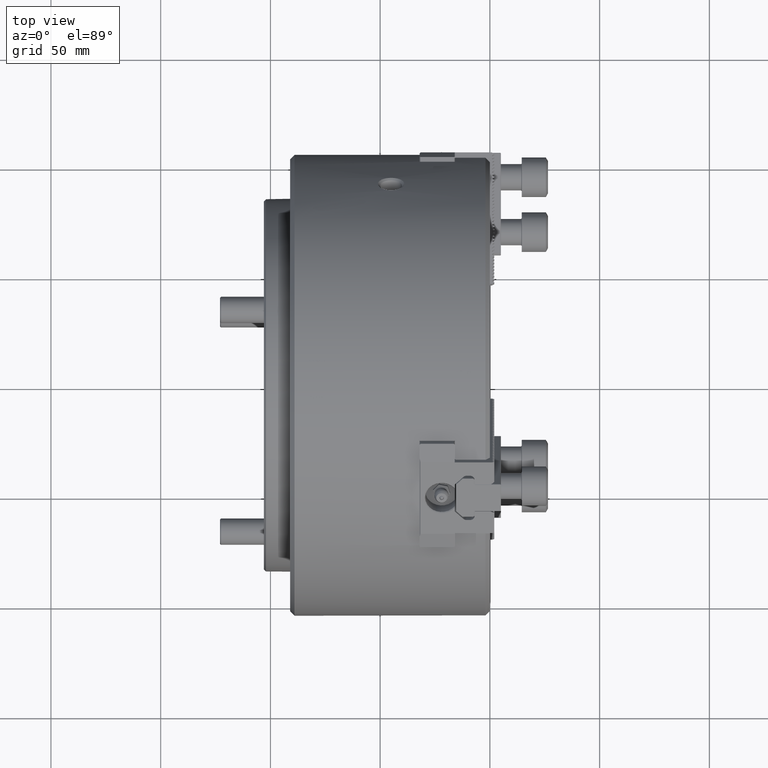
[diagram: clean part render]
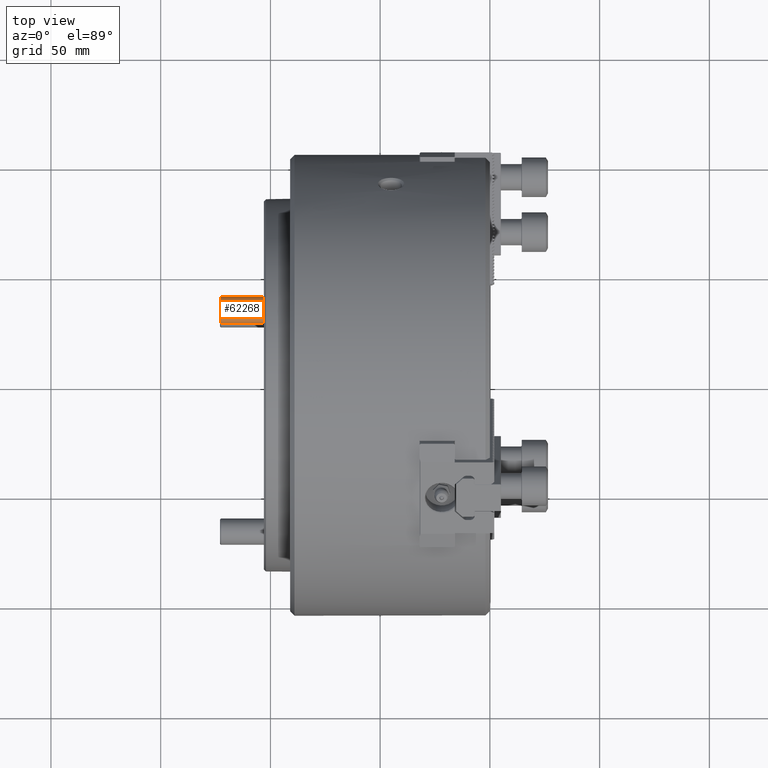
[diagram: same view with one face highlighted and labeled with its STEP entity id]
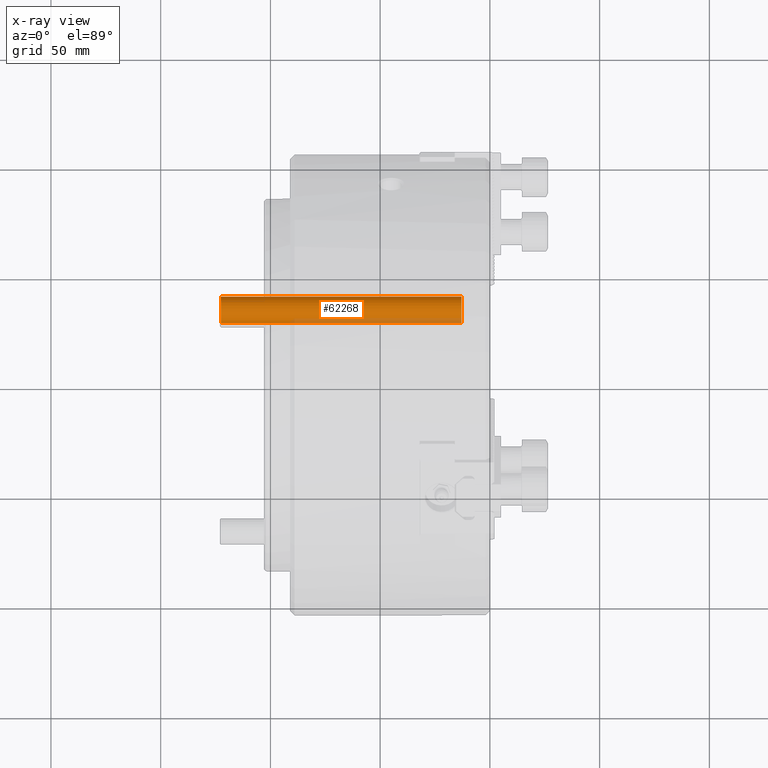
[diagram: x-ray of the same camera — body ghosted, the highlighted face saturated]
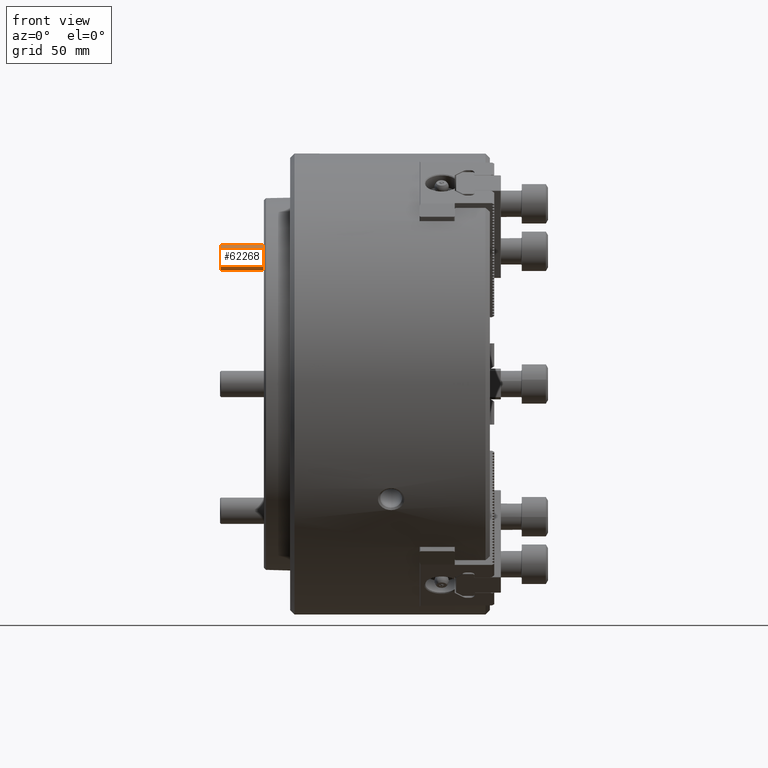
[diagram: same view with one face highlighted and labeled with its STEP entity id]
A machine part, top view. The second image highlights one B-rep face of the part: STEP entity #62268.
The next image is the same camera in x-ray: the body ghosted, the highlighted face saturated — about 14% of this face is hidden behind the body in this view.
A second angle (front view) of the same face is appended — the face is thin or edge-on in the first view.
In plain terms, the highlighted cylindrical surface (bore or boss wall) has radius 6 mm, axis along (-1, 0, 0).
Its self-contained STEP definition (entity closure, byte-faithful):
#12506=ORIENTED_EDGE('',*,*,#25711,.F.);
#12507=ORIENTED_EDGE('',*,*,#25713,.F.);
#25711=EDGE_CURVE('',#32343,#32343,#36820,.T.);
#25713=EDGE_CURVE('',#32345,#32345,#36822,.T.);
#32343=VERTEX_POINT('',#81513);
#32345=VERTEX_POINT('',#81518);
#36820=CIRCLE('',#64906,6.);
#36822=CIRCLE('',#64909,6.);
#38153=EDGE_LOOP('',(#12506));
#38154=EDGE_LOOP('',(#12507));
#41194=FACE_BOUND('',#38153,.T.);
#41195=FACE_BOUND('',#38154,.T.);
#44177=CYLINDRICAL_SURFACE('',#64908,6.);
#62268=ADVANCED_FACE('',(#41194,#41195),#44177,.T.);
#64906=AXIS2_PLACEMENT_3D('',#81512,#68988,#68989);
#64908=AXIS2_PLACEMENT_3D('',#81516,#68992,#68993);
#64909=AXIS2_PLACEMENT_3D('',#81517,#68994,#68995);
#68988=DIRECTION('',(1.,-1.21430643318383E-17,-8.20546238407656E-17));
#68989=DIRECTION('',(5.15435141115429E-17,0.866025403784443,0.499999999999992));
#68992=DIRECTION('',(-1.,1.21430643318383E-17,8.20546238407656E-17));
#68993=DIRECTION('',(5.15435141115429E-17,0.866025403784443,0.499999999999992));
#68994=DIRECTION('',(-1.,1.21430643318383E-17,8.20546238407656E-17));
#68995=DIRECTION('',(-5.15435141115429E-17,-0.866025403784443,-0.499999999999992));
#81512=CARTESIAN_POINT('',(-13.,33.3375000000007,57.7422437973271));
#81513=CARTESIAN_POINT('',(-13.,38.5336524227074,60.742243797327));
#81516=CARTESIAN_POINT('',(-119.,33.3375000000007,57.7422437973271));
#81517=CARTESIAN_POINT('',(-122.5,33.3375000000007,57.7422437973271));
#81518=CARTESIAN_POINT('',(-122.5,28.141347577294,54.7422437973271));